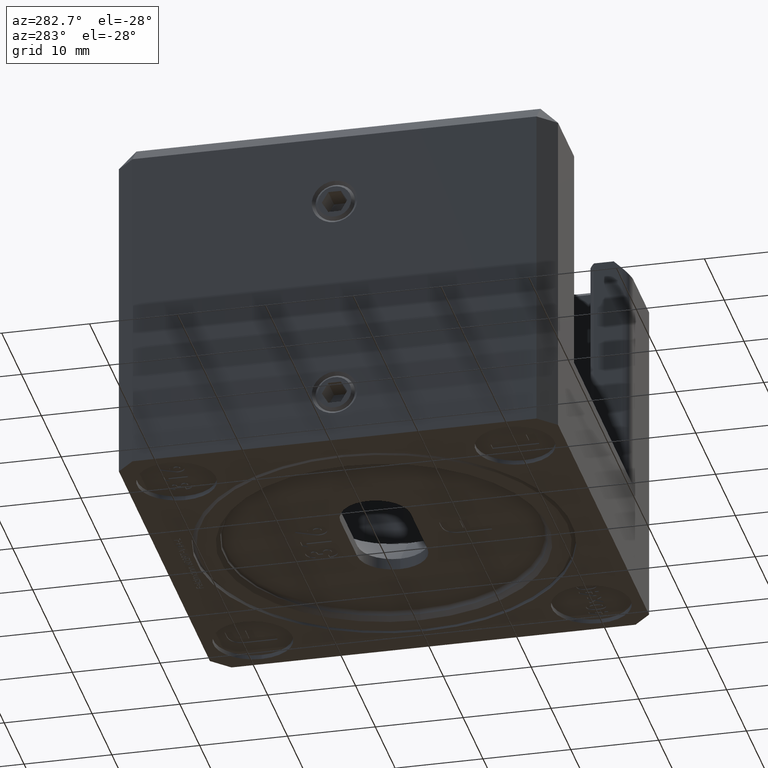
[diagram: clean part render]
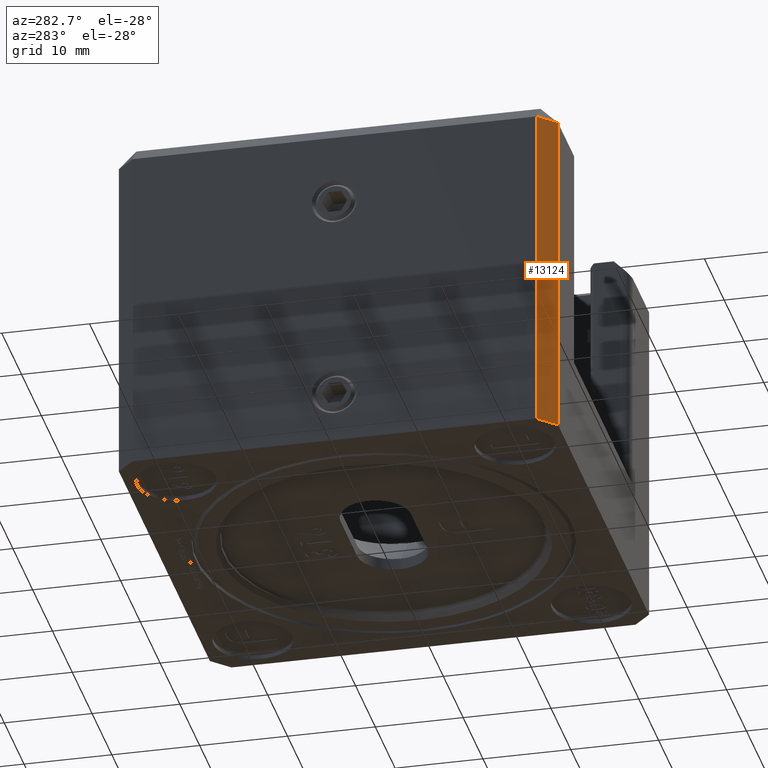
[diagram: same view with one face highlighted and labeled with its STEP entity id]
A machine part, auxiliary view. The second image highlights one B-rep face of the part: STEP entity #13124.
In plain terms, the highlighted planar face has unit normal (0.7071, 0.7071, 0).
Its self-contained STEP definition (entity closure, byte-faithful):
#884 = ORIENTED_EDGE ( 'NONE', *, *, #3788, .F. ) ;
#1324 = AXIS2_PLACEMENT_3D ( 'NONE', #2444, #12770, #4527 ) ;
#1377 = EDGE_CURVE ( 'NONE', #19679, #2409, #14404, .T. ) ;
#2409 = VERTEX_POINT ( 'NONE', #3921 ) ;
#2444 = CARTESIAN_POINT ( 'NONE',  ( -22.99999999999998600, -24.99999999999999300, 20.00000000000000000 ) ) ;
#2495 = VERTEX_POINT ( 'NONE', #24463 ) ;
#3788 = EDGE_CURVE ( 'NONE', #16398, #2495, #23653, .T. ) ;
#3921 = CARTESIAN_POINT ( 'NONE',  ( -22.99999999999998600, -24.99999999999999300, -20.00000000000000000 ) ) ;
#4527 = DIRECTION ( 'NONE',  ( -0.0000000000000000000, 0.0000000000000000000, -1.000000000000000000 ) ) ;
#5447 = ORIENTED_EDGE ( 'NONE', *, *, #1377, .F. ) ;
#5836 = DIRECTION ( 'NONE',  ( 0.0000000000000000000, 0.0000000000000000000, 1.000000000000000000 ) ) ;
#6235 = DIRECTION ( 'NONE',  ( -0.7071067811865451300, 0.7071067811865500200, -0.0000000000000000000 ) ) ;
#6451 = LINE ( 'NONE', #22177, #10355 ) ;
#6970 = EDGE_CURVE ( 'NONE', #2495, #19679, #6451, .T. ) ;
#7606 = EDGE_CURVE ( 'NONE', #2409, #16398, #16461, .T. ) ;
#10355 = VECTOR ( 'NONE', #15899, 1000.000000000000100 ) ;
#11082 = EDGE_LOOP ( 'NONE', ( #15715, #5447, #16538, #884 ) ) ;
#12559 = CARTESIAN_POINT ( 'NONE',  ( -25.00000000000000000, -22.99999999999996400, -20.00000000000000000 ) ) ;
#12770 = DIRECTION ( 'NONE',  ( 0.7071067811865500200, 0.7071067811865451300, 0.0000000000000000000 ) ) ;
#12796 = VECTOR ( 'NONE', #14987, 1000.000000000000000 ) ;
#13124 = ADVANCED_FACE ( 'NONE', ( #20794 ), #16678, .F. ) ;
#14404 = LINE ( 'NONE', #20854, #12796 ) ;
#14987 = DIRECTION ( 'NONE',  ( 0.0000000000000000000, 0.0000000000000000000, -1.000000000000000000 ) ) ;
#15715 = ORIENTED_EDGE ( 'NONE', *, *, #7606, .F. ) ;
#15899 = DIRECTION ( 'NONE',  ( 0.7071067811865451300, -0.7071067811865500200, 2.775557561562892000E-017 ) ) ;
#16398 = VERTEX_POINT ( 'NONE', #12559 ) ;
#16461 = LINE ( 'NONE', #16949, #19017 ) ;
#16538 = ORIENTED_EDGE ( 'NONE', *, *, #6970, .F. ) ;
#16678 = PLANE ( 'NONE',  #1324 ) ;
#16949 = CARTESIAN_POINT ( 'NONE',  ( -22.99999999999998600, -24.99999999999999300, -20.00000000000000000 ) ) ;
#17228 = VECTOR ( 'NONE', #5836, 1000.000000000000000 ) ;
#19017 = VECTOR ( 'NONE', #6235, 1000.000000000000100 ) ;
#19679 = VERTEX_POINT ( 'NONE', #24553 ) ;
#19907 = CARTESIAN_POINT ( 'NONE',  ( -25.00000000000000000, -22.99999999999996400, 20.00000000000000000 ) ) ;
#20794 = FACE_OUTER_BOUND ( 'NONE', #11082, .T. ) ;
#20854 = CARTESIAN_POINT ( 'NONE',  ( -22.99999999999998600, -24.99999999999999300, 20.00000000000000000 ) ) ;
#22177 = CARTESIAN_POINT ( 'NONE',  ( -22.99999999999998600, -24.99999999999999300, 17.99999999999997200 ) ) ;
#23653 = LINE ( 'NONE', #19907, #17228 ) ;
#24463 = CARTESIAN_POINT ( 'NONE',  ( -25.00000000000000000, -22.99999999999996400, 17.99999999999997200 ) ) ;
#24553 = CARTESIAN_POINT ( 'NONE',  ( -22.99999999999998600, -24.99999999999999300, 17.99999999999997200 ) ) ;